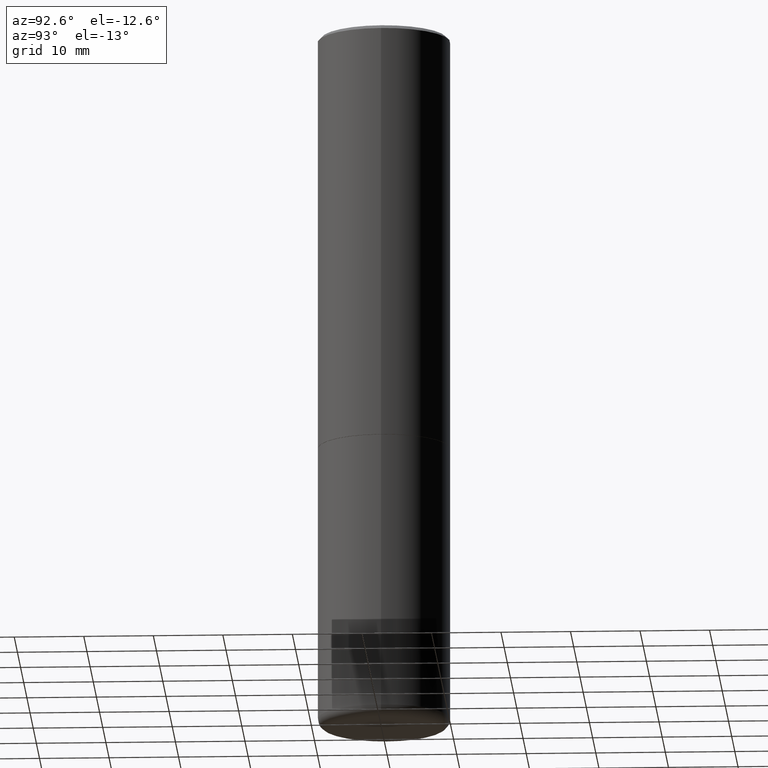
[diagram: clean part render]
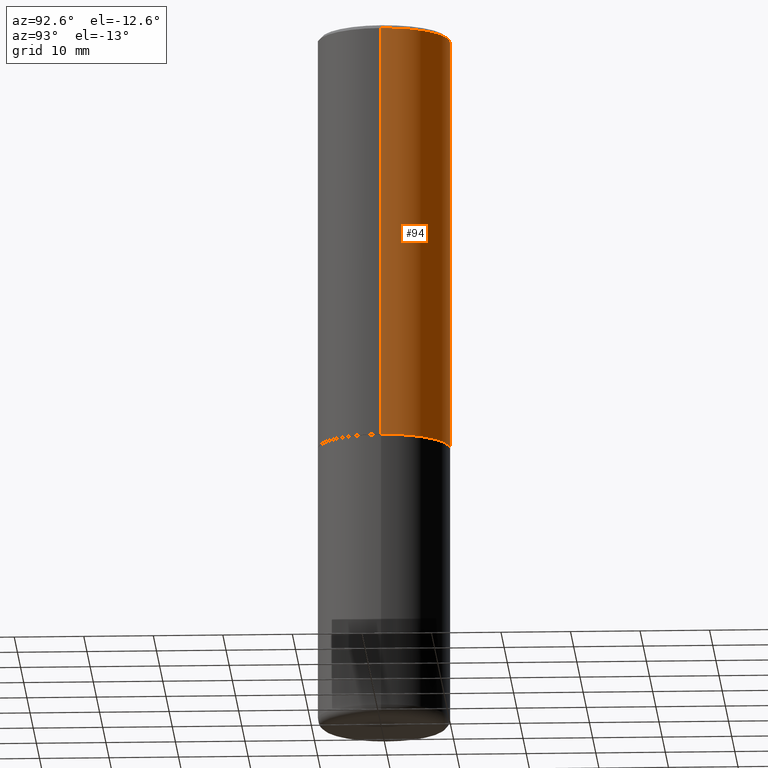
[diagram: same view with one face highlighted and labeled with its STEP entity id]
A machine part, auxiliary view. The second image highlights one B-rep face of the part: STEP entity #94.
In plain terms, the highlighted cylindrical surface (partial cylindrical patch) has radius 9.525 mm, axis along (-0, 0, 1).
Its self-contained STEP definition (entity closure, byte-faithful):
#5 = CARTESIAN_POINT ( 'NONE',  ( -0.3750000000000000555, -1.514767903494867141E-15, -2.373999999999999666 ) ) ;
#13 = CARTESIAN_POINT ( 'NONE',  ( -0.3749999999999998890, 2.664535259100374908E-15, -1.844600658845589038E-29 ) ) ;
#14 = CARTESIAN_POINT ( 'NONE',  ( 0.3750000000000000555, -1.090738770254597870E-14, -2.373999999999999666 ) ) ;
#15 = VERTEX_POINT ( 'NONE', #14 ) ;
#28 = VERTEX_POINT ( 'NONE', #115 ) ;
#68 = LINE ( 'NONE', #247, #192 ) ;
#81 = DIRECTION ( 'NONE',  ( -2.445468806185136877E-29, 3.491481338843145188E-15, 1.000000000000000000 ) ) ;
#82 = DIRECTION ( 'NONE',  ( -2.445468806185136597E-29, 3.491481338843145583E-15, 1.000000000000000000 ) ) ;
#94 = ADVANCED_FACE ( 'NONE', ( #196 ), #230, .T. ) ;
#97 = EDGE_LOOP ( 'NONE', ( #270, #354, #225, #335 ) ) ;
#115 = CARTESIAN_POINT ( 'NONE',  ( -0.3749999999999997780, 2.548781377355484746E-15, -0.02000000000000008021 ) ) ;
#118 = DIRECTION ( 'NONE',  ( 1.000000000000000000, -6.982962677686266711E-15, 4.876176775795935793E-29 ) ) ;
#145 = CARTESIAN_POINT ( 'NONE',  ( 4.890937612370293302E-31, -6.982962677686318726E-17, -0.02000000000000008021 ) ) ;
#162 = VERTEX_POINT ( 'NONE', #411 ) ;
#170 = AXIS2_PLACEMENT_3D ( 'NONE', #428, #423, #118 ) ;
#183 = LINE ( 'NONE', #13, #409 ) ;
#192 = VECTOR ( 'NONE', #412, 39.37007874015748143 ) ;
#193 = CIRCLE ( 'NONE', #229, 0.3750000000000000555 ) ;
#196 = FACE_OUTER_BOUND ( 'NONE', #97, .T. ) ;
#200 = CIRCLE ( 'NONE', #381, 0.3749999999999997780 ) ;
#212 = EDGE_CURVE ( 'NONE', #15, #162, #68, .T. ) ;
#225 = ORIENTED_EDGE ( 'NONE', *, *, #319, .F. ) ;
#229 = AXIS2_PLACEMENT_3D ( 'NONE', #419, #82, #289 ) ;
#230 = CYLINDRICAL_SURFACE ( 'NONE', #170, 0.3749999999999998890 ) ;
#247 = CARTESIAN_POINT ( 'NONE',  ( 0.3749999999999998890, -2.618611004132349228E-15, 1.828566290923475362E-29 ) ) ;
#248 = DIRECTION ( 'NONE',  ( 1.000000000000000000, -6.982962677686265922E-15, 0.000000000000000000 ) ) ;
#270 = ORIENTED_EDGE ( 'NONE', *, *, #326, .T. ) ;
#283 = EDGE_CURVE ( 'NONE', #402, #28, #183, .T. ) ;
#289 = DIRECTION ( 'NONE',  ( 1.000000000000000000, -6.982962677686266711E-15, 0.000000000000000000 ) ) ;
#291 = DIRECTION ( 'NONE',  ( -2.445468806185136597E-29, 3.491481338843145583E-15, 1.000000000000000000 ) ) ;
#319 = EDGE_CURVE ( 'NONE', #162, #28, #200, .T. ) ;
#326 = EDGE_CURVE ( 'NONE', #15, #402, #193, .T. ) ;
#335 = ORIENTED_EDGE ( 'NONE', *, *, #212, .F. ) ;
#354 = ORIENTED_EDGE ( 'NONE', *, *, #283, .T. ) ;
#381 = AXIS2_PLACEMENT_3D ( 'NONE', #145, #291, #248 ) ;
#402 = VERTEX_POINT ( 'NONE', #5 ) ;
#409 = VECTOR ( 'NONE', #81, 39.37007874015748143 ) ;
#411 = CARTESIAN_POINT ( 'NONE',  ( 0.3749999999999997780, -2.642516375941186056E-15, -0.02000000000000008021 ) ) ;
#412 = DIRECTION ( 'NONE',  ( -2.445468806185136877E-29, 3.491481338843145188E-15, 1.000000000000000000 ) ) ;
#419 = CARTESIAN_POINT ( 'NONE',  ( 5.805542945883513814E-29, -8.288776698413627111E-15, -2.373999999999999666 ) ) ;
#423 = DIRECTION ( 'NONE',  ( -2.445468806185136597E-29, 3.491481338843145583E-15, 1.000000000000000000 ) ) ;
#428 = CARTESIAN_POINT ( 'NONE',  ( 0.000000000000000000, 0.000000000000000000, 0.000000000000000000 ) ) ;